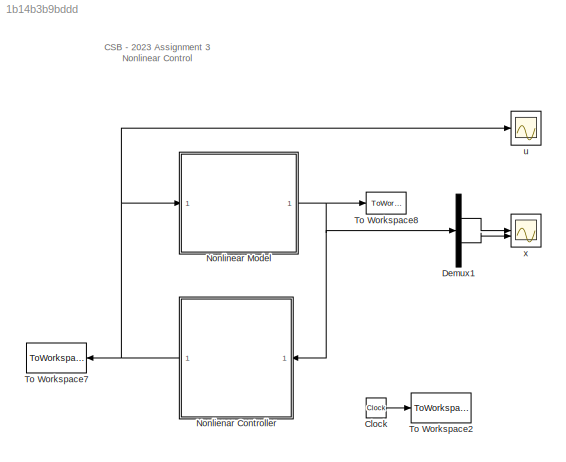
MODEL slx_1b14b3b9bddd
KIND model
CONFIG AbsTol = auto
CONFIG EnableMultiTasking = off
CONFIG FixedStep = auto
CONFIG MaxStep = auto
CONFIG MinStep = auto
CONFIG RelTol = 1e-3
CONFIG SampleTimeConstraint = Unconstrained
CONFIG SolverName = ode45
CONFIG StartTime = 0.0
CONFIG StopTime = Tf
BLOCK [Clock] Clock
BLOCK [Demux] Demux1
  Outputs = 2
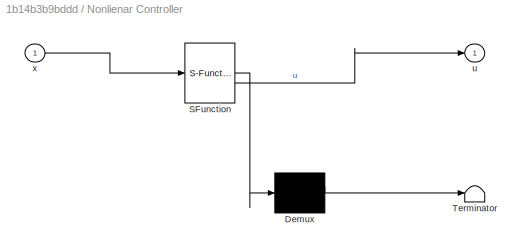
BLOCK [SubSystem] Nonlienar Controller
  ErrorFcn = Stateflow.Translate.translate
  PermitHierarchicalResolution = ExplicitOnly
  SFBlockType = MATLAB Function
  SystemSampleTime = Ts
  TreatAsAtomicUnit = on
BLOCK [Demux] Nonlienar Controller/ Demux 
  Outputs = 1
BLOCK [S-Function] Nonlienar Controller/ SFunction 
  EnableBusSupport = on
  FunctionName = sf_sfun
  Parameters = B,Cs,K1,K2,K3,controller,gamma
  PortCounts = [1 2]
  SFcnIsStateOwnerBlock = off
  SFunctionDeploymentMode = off
  Tag = Stateflow S-Function 2
BLOCK [Terminator] Nonlienar Controller/ Terminator 
BLOCK [Outport] Nonlienar Controller/u
  VectorParamsAs1DForOutWhenUnconnected = off
BLOCK [Inport] Nonlienar Controller/x
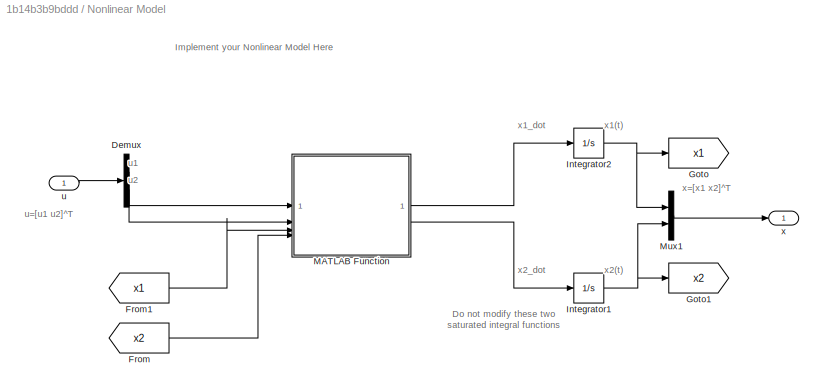
BLOCK [SubSystem] Nonlinear Model
BLOCK [Demux] Nonlinear Model/Demux
  Outputs = 2
BLOCK [From] Nonlinear Model/From
  GotoTag = x2
BLOCK [From] Nonlinear Model/From1
  GotoTag = x1
BLOCK [Goto] Nonlinear Model/Goto
  GotoTag = x1
BLOCK [Goto] Nonlinear Model/Goto1
  GotoTag = x2
BLOCK [Integrator] Nonlinear Model/Integrator1
  InitialCondition = x2_o
  LimitOutput = on
  LowerSaturationLimit = -100
  UpperSaturationLimit = 100
BLOCK [Integrator] Nonlinear Model/Integrator2
  InitialCondition = x1_o
  LimitOutput = on
  LowerSaturationLimit = -100
  UpperSaturationLimit = 100
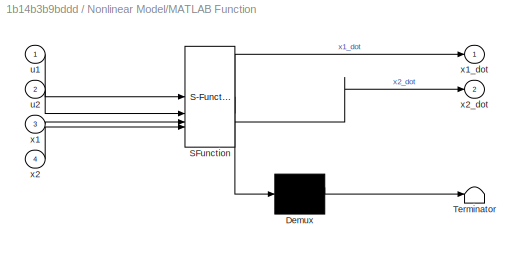
BLOCK [SubSystem] Nonlinear Model/MATLAB Function
  ErrorFcn = Stateflow.Translate.translate
  LibrarySourceBlock = simulink/User-Defined\nFunctions/MATLAB Function
  PermitHierarchicalResolution = ExplicitOnly
  SFBlockType = MATLAB Function
  TreatAsAtomicUnit = on
BLOCK [Demux] Nonlinear Model/MATLAB Function/ Demux 
  Outputs = 1
BLOCK [S-Function] Nonlinear Model/MATLAB Function/ SFunction 
  EnableBusSupport = on
  FunctionName = sf_sfun
  PortCounts = [4 3]
  SFcnIsStateOwnerBlock = off
  SFunctionDeploymentMode = off
  Tag = Stateflow S-Function 1
BLOCK [Terminator] Nonlinear Model/MATLAB Function/ Terminator 
BLOCK [Inport] Nonlinear Model/MATLAB Function/u1
BLOCK [Inport] Nonlinear Model/MATLAB Function/u2
  Port = 2
BLOCK [Inport] Nonlinear Model/MATLAB Function/x1
  Port = 3
BLOCK [Outport] Nonlinear Model/MATLAB Function/x1_dot
BLOCK [Inport] Nonlinear Model/MATLAB Function/x2
  Port = 4
BLOCK [Outport] Nonlinear Model/MATLAB Function/x2_dot
  Port = 2
BLOCK [Mux] Nonlinear Model/Mux1
  DisplayOption = bar
  Inputs = 2
BLOCK [Inport] Nonlinear Model/u
BLOCK [Outport] Nonlinear Model/x 
BLOCK [ToWorkspace] To Workspace2
  FixptAsFi = on
  MaxDataPoints = inf
  SampleTime = Ts/20
  VariableName = time
BLOCK [ToWorkspace] To Workspace7
  FixptAsFi = on
  MaxDataPoints = inf
  NameLocation = top
  SampleTime = Ts/20
  VariableName = u
BLOCK [ToWorkspace] To Workspace8
  FixptAsFi = on
  MaxDataPoints = inf
  SampleTime = Ts/20
  VariableName = x
BLOCK [Scope] u
  Floating = off
  NumInputPorts = 1
  ScopeSpecificationString = Simulink.scopes.TimeScopeBlockCfg('CurrentConfiguration', extmgr.ConfigurationSet(extmgr.Configuration('Core','General UI',true),extmgr.Configuration('Core','Source UI',true),extmgr.Configuration('Sources','WiredSimulink',true,'DataLoggingVariableName','ScopeData1'),extmgr.Configuration('Visuals','Time Domain',true,'SerializedDisplays',{struct('MinYLimReal','-63.01453','MaxYLimReal','8.14792','YLa...<+1485ch>
BLOCK [Scope] x
  Floating = off
  NumInputPorts = 2
  ScopeSpecificationString = Simulink.scopes.TimeScopeBlockCfg('CurrentConfiguration', extmgr.ConfigurationSet(extmgr.Configuration('Core','General UI',true),extmgr.Configuration('Core','Source UI',true),extmgr.Configuration('Sources','WiredSimulink',true),extmgr.Configuration('Visuals','Time Domain',true,'SerializedDisplays',{struct('MinYLimReal','-0.4572','MaxYLimReal','3.8998','YLabelReal','','MinYLimMag','0.00000','MaxYLi...<+2028ch>
ANNOTATION (root): CSB - 2023 Assignment 3 Nonlinear Control
ANNOTATION Nonlinear Model: Do not modify these two saturated integral functions
ANNOTATION Nonlinear Model: Implement your Nonlinear Model Here
ANNOTATION Nonlinear Model: u1
ANNOTATION Nonlinear Model: u2
ANNOTATION Nonlinear Model: u=[u1 u2]^T
ANNOTATION Nonlinear Model: x1(t)
ANNOTATION Nonlinear Model: x1_dot
ANNOTATION Nonlinear Model: x2(t)
ANNOTATION Nonlinear Model: x2_dot
ANNOTATION Nonlinear Model: x=[x1 x2]^T
LINE Clock:1 -> To Workspace2:1
LINE Demux1:1 -> x:1
LINE Demux1:2 -> x:2
NET Nonlienar Controller:1 -> Nonlinear Model:1, To Workspace7:1, u:1
LINE Nonlinear Model/Demux:1 -> Nonlinear Model/MATLAB Function:1
LINE Nonlinear Model/Demux:2 -> Nonlinear Model/MATLAB Function:2
LINE Nonlinear Model/From1:1 -> Nonlinear Model/MATLAB Function:3
LINE Nonlinear Model/From:1 -> Nonlinear Model/MATLAB Function:4
NET Nonlinear Model/Integrator1:1 -> Nonlinear Model/Goto1:1, Nonlinear Model/Mux1:2
NET Nonlinear Model/Integrator2:1 -> Nonlinear Model/Goto:1, Nonlinear Model/Mux1:1
LINE Nonlinear Model/MATLAB Function:1 -> Nonlinear Model/Integrator2:1
LINE Nonlinear Model/MATLAB Function:2 -> Nonlinear Model/Integrator1:1
LINE Nonlinear Model/Mux1:1 -> Nonlinear Model/x :1
LINE Nonlinear Model/u:1 -> Nonlinear Model/Demux:1
NET Nonlinear Model:1 -> Demux1:1, Nonlienar Controller:1, To Workspace8:1
note: NET lines group one-source signal fan-out (src -> all destinations, sorted); 1:1 wires keep LINE
CHART Nonlinear Model/MATLAB Function states=1 transitions=1
  STATE_LABEL 'eML_blk_kernel()'
  STATE_LABEL 'SCRIPT:\nfunction [x1_dot, x2_dot]= dynamics(u1, u2, x1,x2)\n\nx1_dot = x1*(x1^2 +x2^2) + 2*x1*x2^2 + 6*x2 + u1;\nx2_dot = x2*(x1^2 +x2^2) - 2*x1^2*x2 -  2*x1 + 2*u2; \n\nend\n\n'
CHART Nonlienar Controller states=1 transitions=1
  STATE_LABEL 'eML_blk_kernel()'
  STATE_LABEL "SCRIPT:\nfunction u = Nonlinear(x, Cs,B, gamma,K1, K2, K3, controller)\n% Initializations to define arrays size\n% Do not delete\nx_k = zeros(2,1);\nx1 = 0;\nx2 = 0;\nSx = zeros(2,1);\nu_k=[0 0]';\n\n%% Measurements\nx_k=x;\nx1 = x_k(1);\nx2 = x_k(2);\n\nswitch controller\n    %% Implement the required controllers in each case section\n    %  Modify all of them as required\n    case 1\n    %% SFC with closed-loop po...<+638ch>"
CHART  states=0 transitions=0
CHART  states=0 transitions=0
